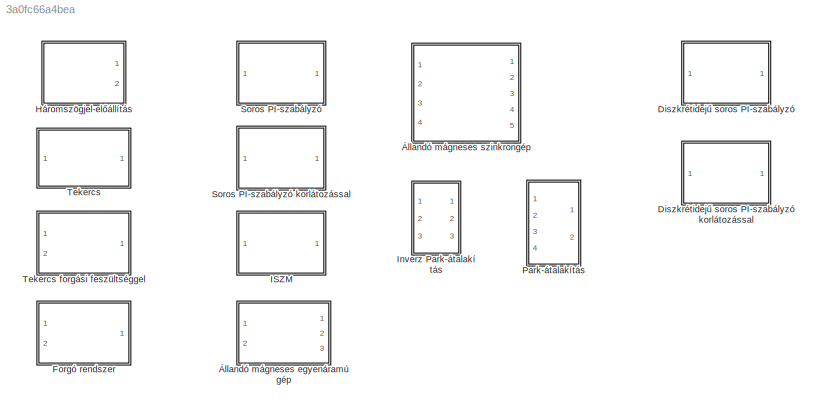
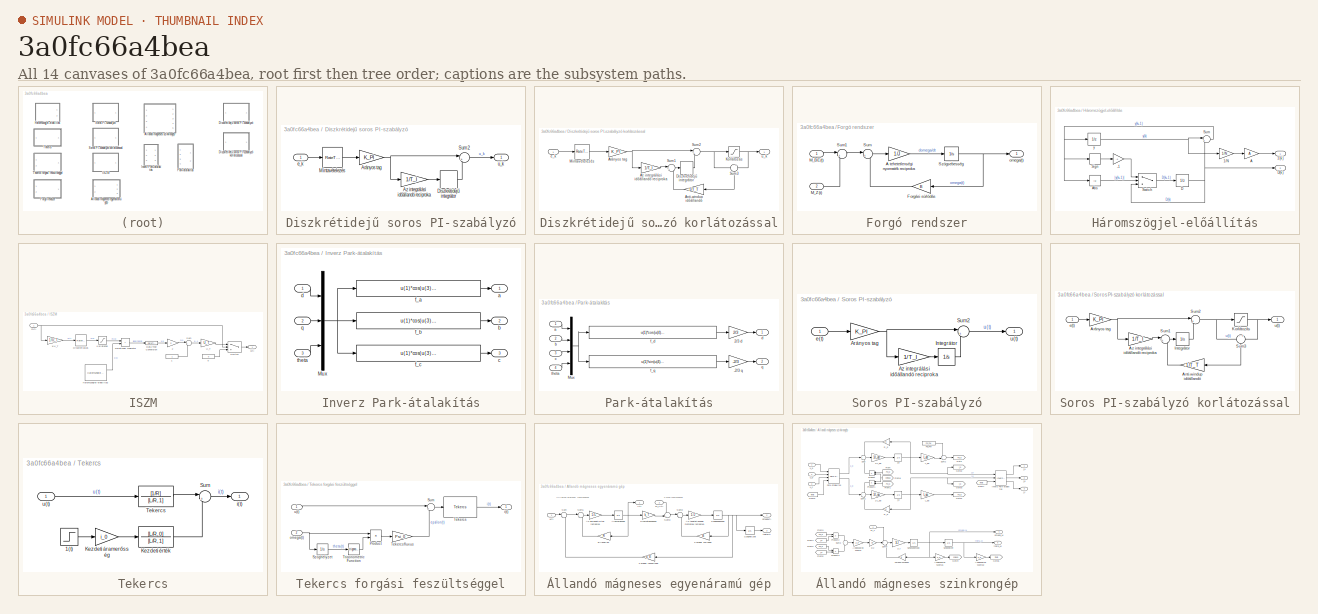
[diagram: thumbnail index - all 14 canvases of the model, root first then tree order]
MODEL slx_3a0fc66a4bea
KIND library
BLOCK [SubSystem] Diszkrétidejű soros PI-szabályzó
  FunctionWithSeparateData = off
  MaskHideContents = off
  MinAlgLoopOccurrences = off
  Opaque = off
  Ports = [1, 1]
  PropExecContextOutsideSubsystem = off
  RTWSystemCode = Auto
  RequestExecContextInheritance = off
BLOCK [SubSystem] Diszkrétidejű soros PI-szabályzó korlátozással
  FunctionWithSeparateData = off
  MaskHideContents = off
  MinAlgLoopOccurrences = off
  Opaque = off
  Ports = [1, 1]
  PropExecContextOutsideSubsystem = off
  RTWSystemCode = Auto
  RequestExecContextInheritance = off
BLOCK [Gain] Diszkrétidejű soros PI-szabályzó korlátozással/Anti-windup időállandó
  Gain = 1/T_T
  OutDataTypeStr = Inherit: Inherit via internal rule
  ParamDataTypeStr = Inherit: Inherit via internal rule
  SaturateOnIntegerOverflow = off
BLOCK [Gain] Diszkrétidejű soros PI-szabályzó korlátozással/Arányos tag
  Gain = K_PI
  OutDataTypeStr = Inherit: Inherit via internal rule
  ParamDataTypeStr = Inherit: Inherit via internal rule
  SaturateOnIntegerOverflow = off
BLOCK [Gain] Diszkrétidejű soros PI-szabályzó korlátozással/Az integrálási időállandó reciproka
  Gain = 1/T_I
  OutDataTypeStr = Inherit: Inherit via internal rule
  ParamDataTypeStr = Inherit: Inherit via internal rule
  SaturateOnIntegerOverflow = off
BLOCK [DiscreteIntegrator] Diszkrétidejű soros PI-szabályzó korlátozással/Diszkrétidejű integrátor
  ICPrevOutput = DiscIntNeverNeededParam
  ICPrevScaledInput = DiscIntNeverNeededParam
  Ports = [1, 1]
  SampleTime = T_S
BLOCK [Saturate] Diszkrétidejű soros PI-szabályzó korlátozással/Korlátozás
  InputPortMap = u0
  LowerLimit = L_L
  Ports = [1, 1]
  UpperLimit = L_U
BLOCK [RateTransition] Diszkrétidejű soros PI-szabályzó korlátozással/Mintavételezés
  OutPortSampleTime = T_S
BLOCK [Sum] Diszkrétidejű soros PI-szabályzó korlátozással/Sum1
  IconShape = round
  InputSameDT = off
  Inputs = |++
  OutDataTypeStr = Inherit: Inherit via internal rule
  Ports = [2, 1]
  SaturateOnIntegerOverflow = off
BLOCK [Sum] Diszkrétidejű soros PI-szabályzó korlátozással/Sum2
  IconShape = round
  InputSameDT = off
  Inputs = |++
  OutDataTypeStr = Inherit: Inherit via internal rule
  Ports = [2, 1]
  SaturateOnIntegerOverflow = off
BLOCK [Sum] Diszkrétidejű soros PI-szabályzó korlátozással/Sum3
  IconShape = round
  InputSameDT = off
  Inputs = -|+
  OutDataTypeStr = Inherit: Inherit via internal rule
  Ports = [2, 1]
  SaturateOnIntegerOverflow = off
BLOCK [Inport] Diszkrétidejű soros PI-szabályzó korlátozással/e_k
  IconDisplay = Port number
BLOCK [Outport] Diszkrétidejű soros PI-szabályzó korlátozással/u_k
  IconDisplay = Port number
BLOCK [Gain] Diszkrétidejű soros PI-szabályzó/Arányos tag
  Gain = K_PI
  OutDataTypeStr = Inherit: Inherit via internal rule
  ParamDataTypeStr = Inherit: Inherit via internal rule
  SaturateOnIntegerOverflow = off
BLOCK [Gain] Diszkrétidejű soros PI-szabályzó/Az integrálási időállandó reciproka
  Gain = 1/T_I
  OutDataTypeStr = Inherit: Inherit via internal rule
  ParamDataTypeStr = Inherit: Inherit via internal rule
  SaturateOnIntegerOverflow = off
BLOCK [DiscreteIntegrator] Diszkrétidejű soros PI-szabályzó/Diszkrétidejű integrátor
  ICPrevOutput = DiscIntNeverNeededParam
  ICPrevScaledInput = DiscIntNeverNeededParam
  Ports = [1, 1]
  SampleTime = T_S
BLOCK [RateTransition] Diszkrétidejű soros PI-szabályzó/Mintavételezés
  OutPortSampleTime = T_S
BLOCK [Sum] Diszkrétidejű soros PI-szabályzó/Sum2
  IconShape = round
  InputSameDT = off
  Inputs = |++
  OutDataTypeStr = Inherit: Inherit via internal rule
  Ports = [2, 1]
  SaturateOnIntegerOverflow = off
BLOCK [Inport] Diszkrétidejű soros PI-szabályzó/e_k
  IconDisplay = Port number
BLOCK [Outport] Diszkrétidejű soros PI-szabályzó/u_k
  IconDisplay = Port number
BLOCK [SubSystem] Forgó rendszer
  FunctionWithSeparateData = off
  MaskHideContents = off
  MinAlgLoopOccurrences = off
  Opaque = off
  Ports = [2, 1]
  PropExecContextOutsideSubsystem = off
  RTWSystemCode = Auto
  RequestExecContextInheritance = off
BLOCK [Gain] Forgó rendszer/A tehetetlenségi nyomaték reciproka
  Gain = 1/J
  OutDataTypeStr = Inherit: Inherit via internal rule
  ParamDataTypeStr = Inherit: Inherit via internal rule
  SaturateOnIntegerOverflow = off
BLOCK [Gain] Forgó rendszer/Forgási súrlódás
  Gain = B
  OutDataTypeStr = Inherit: Inherit via internal rule
  ParamDataTypeStr = Inherit: Inherit via internal rule
  SaturateOnIntegerOverflow = off
BLOCK [Inport] Forgó rendszer/M_BE(t)
  IconDisplay = Port number
BLOCK [Inport] Forgó rendszer/M_Z(t)
  IconDisplay = Port number
  Port = 2
BLOCK [Sum] Forgó rendszer/Sum
  IconShape = round
  InputSameDT = off
  Inputs = |+-
  OutDataTypeStr = Inherit: Inherit via internal rule
  Ports = [2, 1]
  SaturateOnIntegerOverflow = off
BLOCK [Sum] Forgó rendszer/Sum1
  IconShape = round
  InputSameDT = off
  Inputs = |++
  OutDataTypeStr = Inherit: Inherit via internal rule
  Ports = [2, 1]
  SaturateOnIntegerOverflow = off
BLOCK [Integrator] Forgó rendszer/Szögsebesség
  InitialCondition = omega_0
  Ports = [1, 1]
BLOCK [Outport] Forgó rendszer/omega(t)
  IconDisplay = Port number
BLOCK [SubSystem] Háromszögjel-előállítás
  FunctionWithSeparateData = off
  MaskHideContents = off
  MinAlgLoopOccurrences = off
  Opaque = off
  Ports = [0, 2]
  PropExecContextOutsideSubsystem = off
  RTWSystemCode = Auto
  RequestExecContextInheritance = off
BLOCK [Gain] Háromszögjel-előállítás/-1
  Gain = -1
  OutDataTypeStr = Inherit: Inherit via internal rule
  ParamDataTypeStr = Inherit: Inherit via internal rule
  SaturateOnIntegerOverflow = off
BLOCK [Gain] Háromszögjel-előállítás/1//N
  Gain = 1/N
  OutDataTypeStr = Inherit: Inherit via internal rule
  ParamDataTypeStr = Inherit: Inherit via internal rule
  SaturateOnIntegerOverflow = off
BLOCK [Gain] Háromszögjel-előállítás/A
  Gain = A
  OutDataTypeStr = Inherit: Inherit via internal rule
  ParamDataTypeStr = Inherit: Inherit via internal rule
  SaturateOnIntegerOverflow = off
BLOCK [Abs] Háromszögjel-előállítás/Abs
  SaturateOnIntegerOverflow = off
BLOCK [UnitDelay] Háromszögjel-előállítás/D
  InitialCondition = -1
  InputProcessing = Elements as channels (sample based)
  SampleTime = T_S
BLOCK [Outport] Háromszögjel-előállítás/D(k)
  IconDisplay = Port number
  Port = 2
BLOCK [Signum] Háromszögjel-előállítás/Sign
BLOCK [Sum] Háromszögjel-előállítás/Sum
  IconShape = round
  InputSameDT = off
  Inputs = |++
  OutDataTypeStr = Inherit: Inherit via internal rule
  Ports = [2, 1]
  SaturateOnIntegerOverflow = off
BLOCK [Switch] Háromszögjel-előállítás/Switch
  InputSameDT = off
  SaturateOnIntegerOverflow = off
  Threshold = N
BLOCK [UnitDelay] Háromszögjel-előállítás/y
  InitialCondition = N
  InputProcessing = Elements as channels (sample based)
  SampleTime = T_S
BLOCK [Outport] Háromszögjel-előállítás/z(k)
  IconDisplay = Port number
BLOCK [SubSystem] ISZM
  FunctionWithSeparateData = off
  MaskHideContents = off
  MinAlgLoopOccurrences = off
  Opaque = off
  Ports = [1, 1]
  PropExecContextOutsideSubsystem = off
  RTWSystemCode = Auto
  RequestExecContextInheritance = off
BLOCK [Constant] ISZM/0
  Value = 0
BLOCK [Constant] ISZM/1
BLOCK [Gain] ISZM/1//U_T
  Gain = 1/U_T
  OutDataTypeStr = Inherit: Inherit via internal rule
  ParamDataTypeStr = Inherit: Inherit via internal rule
  SaturateOnIntegerOverflow = off
BLOCK [Gain] ISZM/2
  Gain = 2
  OutDataTypeStr = Inherit: Inherit via internal rule
  ParamDataTypeStr = Inherit: Inherit via internal rule
  SaturateOnIntegerOverflow = off
BLOCK [DataTypeConversion] ISZM/Data Type Conversion
  OutDataTypeStr = double
  RndMeth = Floor
  SaturateOnIntegerOverflow = off
BLOCK [RateTransition] ISZM/Diszkretizálás
  OutPortSampleTime = 1/f_ISZM/2
BLOCK [Reference] ISZM/Háromszögjel-előállítás  REF=RI_MK/Háromszögjel-előállítás
  A = 1
  Ports = [0, 2]
  SourceBlock = RI_MK/Háromszögjel-előállítás
  SourceType = Háromszögjel-előállítás
  T_S = T_S
  f = f_ISZM
BLOCK [Saturate] ISZM/Korlátozás
  InputPortMap = u0
  LowerLimit = -0.95*U_T
  Ports = [1, 1]
  UpperLimit = 0.95*U_T
BLOCK [RelationalOperator] ISZM/Relational Operator
  InputSameDT = off
  Operator = >
  OutDataTypeStr = boolean
  Ports = [2, 1]
BLOCK [Sum] ISZM/Sum
  IconShape = round
  InputSameDT = off
  Inputs = |+-
  OutDataTypeStr = Inherit: Inherit via internal rule
  Ports = [2, 1]
  SaturateOnIntegerOverflow = off
BLOCK [Switch] ISZM/Switch
  Criteria = u2 ~= 0
  InputSameDT = off
  SaturateOnIntegerOverflow = off
BLOCK [Gain] ISZM/U_T
  Gain = U_T
  OutDataTypeStr = Inherit: Inherit via internal rule
  ParamDataTypeStr = Inherit: Inherit via internal rule
  SaturateOnIntegerOverflow = off
BLOCK [Inport] ISZM/m(t)
  IconDisplay = Port number
BLOCK [Outport] ISZM/u(t)
  IconDisplay = Port number
BLOCK [SubSystem] Inverz Park-átalakítás
  FunctionWithSeparateData = off
  MaskHideContents = off
  MinAlgLoopOccurrences = off
  Opaque = off
  Ports = [3, 3]
  PropExecContextOutsideSubsystem = off
  RTWSystemCode = Auto
  RequestExecContextInheritance = off
BLOCK [Mux] Inverz Park-átalakítás/Mux
  DisplayOption = bar
  Inputs = 3
  Ports = [3, 1]
BLOCK [Outport] Inverz Park-átalakítás/a
  IconDisplay = Port number
BLOCK [Outport] Inverz Park-átalakítás/b
  IconDisplay = Port number
  Port = 2
BLOCK [Outport] Inverz Park-átalakítás/c
  IconDisplay = Port number
  Port = 3
BLOCK [Inport] Inverz Park-átalakítás/d
  IconDisplay = Port number
BLOCK [Fcn] Inverz Park-átalakítás/f_a
  Expr = u(1)*cos(u(3)) - u(2)*sin(u(3))
BLOCK [Fcn] Inverz Park-átalakítás/f_b
  Expr = u(1)*cos(u(3) - 2*pi/3) - u(2)*sin(u(3) - 2*pi/3)
BLOCK [Fcn] Inverz Park-átalakítás/f_c
  Expr = u(1)*cos(u(3) - 4*pi/3) - u(2)*sin(u(3) - 4*pi/3)
BLOCK [Inport] Inverz Park-átalakítás/q
  IconDisplay = Port number
  Port = 2
BLOCK [Inport] Inverz Park-átalakítás/theta
  IconDisplay = Port number
  Port = 3
BLOCK [SubSystem] Park-átalakítás
  FunctionWithSeparateData = off
  MaskHideContents = off
  MinAlgLoopOccurrences = off
  Opaque = off
  Ports = [4, 2]
  PropExecContextOutsideSubsystem = off
  RTWSystemCode = Auto
  RequestExecContextInheritance = off
BLOCK [Gain] Park-átalakítás/-2//3 q
  Gain = -2/3
  OutDataTypeStr = Inherit: Inherit via internal rule
  ParamDataTypeStr = Inherit: Inherit via internal rule
  SaturateOnIntegerOverflow = off
BLOCK [Gain] Park-átalakítás/2//3 d
  Gain = 2/3
  OutDataTypeStr = Inherit: Inherit via internal rule
  ParamDataTypeStr = Inherit: Inherit via internal rule
  SaturateOnIntegerOverflow = off
BLOCK [Mux] Park-átalakítás/Mux
  DisplayOption = bar
  Ports = [4, 1]
BLOCK [Inport] Park-átalakítás/a
  IconDisplay = Port number
BLOCK [Inport] Park-átalakítás/b
  IconDisplay = Port number
  Port = 2
BLOCK [Inport] Park-átalakítás/c
  IconDisplay = Port number
  Port = 3
BLOCK [Outport] Park-átalakítás/d
  IconDisplay = Port number
BLOCK [Fcn] Park-átalakítás/f_d
  Expr = u(1)*cos(u(4)) + u(2)*cos(u(4) - 2*pi/3) + u(3)*cos(u(4) - 4*pi/3)
BLOCK [Fcn] Park-átalakítás/f_q
  Expr = u(1)*sin(u(4)) + u(2)*sin(u(4) - 2*pi/3) + u(3)*sin(u(4) - 4*pi/3)
BLOCK [Outport] Park-átalakítás/q
  IconDisplay = Port number
  Port = 2
BLOCK [Inport] Park-átalakítás/theta
  IconDisplay = Port number
  Port = 4
BLOCK [SubSystem] Soros PI-szabályzó
  FunctionWithSeparateData = off
  MaskHideContents = off
  MinAlgLoopOccurrences = off
  Opaque = off
  Ports = [1, 1]
  PropExecContextOutsideSubsystem = off
  RTWSystemCode = Auto
  RequestExecContextInheritance = off
BLOCK [SubSystem] Soros PI-szabályzó korlátozással
  FunctionWithSeparateData = off
  MaskHideContents = off
  MinAlgLoopOccurrences = off
  Opaque = off
  Ports = [1, 1]
  PropExecContextOutsideSubsystem = off
  RTWSystemCode = Auto
  RequestExecContextInheritance = off
BLOCK [Gain] Soros PI-szabályzó korlátozással/Anti-windup időállandó
  Gain = 1/T_T
  OutDataTypeStr = Inherit: Inherit via internal rule
  ParamDataTypeStr = Inherit: Inherit via internal rule
  SaturateOnIntegerOverflow = off
BLOCK [Gain] Soros PI-szabályzó korlátozással/Arányos tag
  Gain = K_PI
  OutDataTypeStr = Inherit: Inherit via internal rule
  ParamDataTypeStr = Inherit: Inherit via internal rule
  SaturateOnIntegerOverflow = off
BLOCK [Gain] Soros PI-szabályzó korlátozással/Az integrálási időállandó reciproka
  Gain = 1/T_I
  OutDataTypeStr = Inherit: Inherit via internal rule
  ParamDataTypeStr = Inherit: Inherit via internal rule
  SaturateOnIntegerOverflow = off
BLOCK [Integrator] Soros PI-szabályzó korlátozással/Integrátor
  Ports = [1, 1]
BLOCK [Saturate] Soros PI-szabályzó korlátozással/Korlátozás
  InputPortMap = u0
  LowerLimit = L_L
  Ports = [1, 1]
  UpperLimit = L_U
BLOCK [Sum] Soros PI-szabályzó korlátozással/Sum1
  IconShape = round
  InputSameDT = off
  Inputs = |++
  OutDataTypeStr = Inherit: Inherit via internal rule
  Ports = [2, 1]
  SaturateOnIntegerOverflow = off
BLOCK [Sum] Soros PI-szabályzó korlátozással/Sum2
  IconShape = round
  InputSameDT = off
  Inputs = |++
  OutDataTypeStr = Inherit: Inherit via internal rule
  Ports = [2, 1]
  SaturateOnIntegerOverflow = off
BLOCK [Sum] Soros PI-szabályzó korlátozással/Sum3
  IconShape = round
  InputSameDT = off
  Inputs = -|+
  OutDataTypeStr = Inherit: Inherit via internal rule
  Ports = [2, 1]
  SaturateOnIntegerOverflow = off
BLOCK [Inport] Soros PI-szabályzó korlátozással/e(t)
  IconDisplay = Port number
BLOCK [Outport] Soros PI-szabályzó korlátozással/u(t)
  IconDisplay = Port number
BLOCK [Gain] Soros PI-szabályzó/Arányos tag
  Gain = K_PI
  OutDataTypeStr = Inherit: Inherit via internal rule
  ParamDataTypeStr = Inherit: Inherit via internal rule
  SaturateOnIntegerOverflow = off
BLOCK [Gain] Soros PI-szabályzó/Az integrálási időállandó reciproka
  Gain = 1/T_I
  OutDataTypeStr = Inherit: Inherit via internal rule
  ParamDataTypeStr = Inherit: Inherit via internal rule
  SaturateOnIntegerOverflow = off
BLOCK [Integrator] Soros PI-szabályzó/Integrátor
  Ports = [1, 1]
BLOCK [Sum] Soros PI-szabályzó/Sum2
  IconShape = round
  InputSameDT = off
  Inputs = |++
  OutDataTypeStr = Inherit: Inherit via internal rule
  Ports = [2, 1]
  SaturateOnIntegerOverflow = off
BLOCK [Inport] Soros PI-szabályzó/e(t)
  IconDisplay = Port number
BLOCK [Outport] Soros PI-szabályzó/u(t)
  IconDisplay = Port number
BLOCK [SubSystem] Tekercs
  FunctionWithSeparateData = off
  MaskHideContents = off
  MinAlgLoopOccurrences = off
  Opaque = off
  Ports = [1, 1]
  PropExecContextOutsideSubsystem = off
  RTWSystemCode = Auto
  RequestExecContextInheritance = off
BLOCK [SubSystem] Tekercs forgási feszültséggel
  FunctionWithSeparateData = off
  MaskHideContents = off
  MinAlgLoopOccurrences = off
  Opaque = off
  Ports = [2, 1]
  PropExecContextOutsideSubsystem = off
  RTWSystemCode = Auto
  RequestExecContextInheritance = off
BLOCK [Product] Tekercs forgási feszültséggel/Product
  InputSameDT = off
  OutDataTypeStr = Inherit: Inherit via internal rule
  Ports = [2, 1]
  RndMeth = Floor
  SaturateOnIntegerOverflow = off
BLOCK [Sum] Tekercs forgási feszültséggel/Sum
  IconShape = round
  InputSameDT = off
  Inputs = |++
  OutDataTypeStr = Inherit: Inherit via internal rule
  Ports = [2, 1]
  SaturateOnIntegerOverflow = off
BLOCK [Integrator] Tekercs forgási feszültséggel/Szöghelyzet
  InitialCondition = theta_0
  Ports = [1, 1]
BLOCK [Reference] Tekercs forgási feszültséggel/Tekercs  REF=RI_MK/Tekercs
  L = L
  Ports = [1, 1]
  R = R
  SourceBlock = RI_MK/Tekercs
  SourceType = Tekercs
  i_0 = i_0
BLOCK [Gain] Tekercs forgási feszültséggel/Tekercsfluxus
  Gain = Psi_0
  OutDataTypeStr = Inherit: Inherit via internal rule
  ParamDataTypeStr = Inherit: Inherit via internal rule
  SaturateOnIntegerOverflow = off
BLOCK [Trigonometry] Tekercs forgási feszültséggel/Trigonometric Function
  Ports = [1, 1]
BLOCK [Outport] Tekercs forgási feszültséggel/i(t)
  IconDisplay = Port number
BLOCK [Inport] Tekercs forgási feszültséggel/omega(t)
  IconDisplay = Port number
  Port = 2
BLOCK [Inport] Tekercs forgási feszültséggel/u(t)
  IconDisplay = Port number
BLOCK [Step] Tekercs/1(t)
  SampleTime = 0
  Time = 0
BLOCK [Gain] Tekercs/Kezdeti áramerősség
  Gain = i_0
  OutDataTypeStr = Inherit: Inherit via internal rule
  ParamDataTypeStr = Inherit: Inherit via internal rule
  SaturateOnIntegerOverflow = off
BLOCK [TransferFcn] Tekercs/Kezdeti érték
  Denominator = [L/R, 1]
  Numerator = [L/R, 0]
BLOCK [Sum] Tekercs/Sum
  IconShape = round
  InputSameDT = off
  Inputs = |++
  OutDataTypeStr = Inherit: Inherit via internal rule
  Ports = [2, 1]
  SaturateOnIntegerOverflow = off
BLOCK [TransferFcn] Tekercs/Tekercs
  Denominator = [L/R, 1]
  Numerator = [1/R]
BLOCK [Outport] Tekercs/i(t)
  IconDisplay = Port number
BLOCK [Inport] Tekercs/u(t)
  IconDisplay = Port number
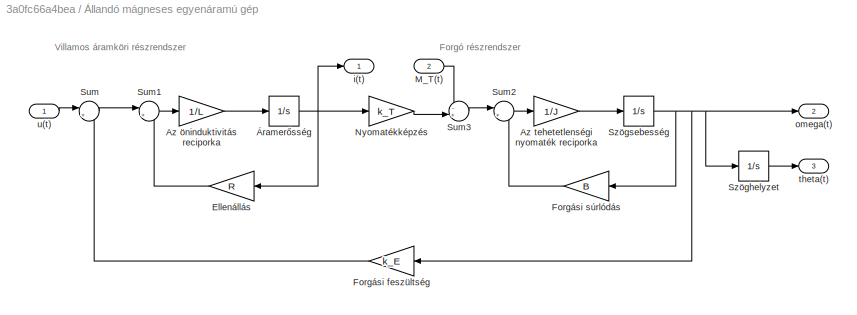
BLOCK [SubSystem] Állandó mágneses egyenáramú gép
  FunctionWithSeparateData = off
  MaskHideContents = off
  MinAlgLoopOccurrences = off
  Opaque = off
  Ports = [2, 3]
  PropExecContextOutsideSubsystem = off
  RTWSystemCode = Auto
  RequestExecContextInheritance = off
BLOCK [Gain] Állandó mágneses egyenáramú gép/Az tehetetlenségi nyomaték reciporka
  Gain = 1/J
  OutDataTypeStr = Inherit: Inherit via internal rule
  ParamDataTypeStr = Inherit: Inherit via internal rule
  SaturateOnIntegerOverflow = off
BLOCK [Gain] Állandó mágneses egyenáramú gép/Az öninduktivitás reciporka
  Gain = 1/L
  OutDataTypeStr = Inherit: Inherit via internal rule
  ParamDataTypeStr = Inherit: Inherit via internal rule
  SaturateOnIntegerOverflow = off
BLOCK [Gain] Állandó mágneses egyenáramú gép/Ellenállás
  Gain = R
  OutDataTypeStr = Inherit: Inherit via internal rule
  ParamDataTypeStr = Inherit: Inherit via internal rule
  SaturateOnIntegerOverflow = off
BLOCK [Gain] Állandó mágneses egyenáramú gép/Forgási feszültség
  Gain = k_E
  OutDataTypeStr = Inherit: Inherit via internal rule
  ParamDataTypeStr = Inherit: Inherit via internal rule
  SaturateOnIntegerOverflow = off
BLOCK [Gain] Állandó mágneses egyenáramú gép/Forgási súrlódás
  Gain = B
  OutDataTypeStr = Inherit: Inherit via internal rule
  ParamDataTypeStr = Inherit: Inherit via internal rule
  SaturateOnIntegerOverflow = off
BLOCK [Inport] Állandó mágneses egyenáramú gép/M_T(t)
  IconDisplay = Port number
  Port = 2
BLOCK [Gain] Állandó mágneses egyenáramú gép/Nyomatékképzés
  Gain = k_T
  OutDataTypeStr = Inherit: Inherit via internal rule
  ParamDataTypeStr = Inherit: Inherit via internal rule
  SaturateOnIntegerOverflow = off
BLOCK [Sum] Állandó mágneses egyenáramú gép/Sum
  IconShape = round
  InputSameDT = off
  Inputs = |+-
  OutDataTypeStr = Inherit: Inherit via internal rule
  Ports = [2, 1]
  SaturateOnIntegerOverflow = off
BLOCK [Sum] Állandó mágneses egyenáramú gép/Sum1
  IconShape = round
  InputSameDT = off
  Inputs = |+-
  OutDataTypeStr = Inherit: Inherit via internal rule
  Ports = [2, 1]
  SaturateOnIntegerOverflow = off
BLOCK [Sum] Állandó mágneses egyenáramú gép/Sum2
  IconShape = round
  InputSameDT = off
  Inputs = |+-
  OutDataTypeStr = Inherit: Inherit via internal rule
  Ports = [2, 1]
  SaturateOnIntegerOverflow = off
BLOCK [Sum] Állandó mágneses egyenáramú gép/Sum3
  IconShape = round
  InputSameDT = off
  Inputs = -+|
  OutDataTypeStr = Inherit: Inherit via internal rule
  Ports = [2, 1]
  SaturateOnIntegerOverflow = off
BLOCK [Integrator] Állandó mágneses egyenáramú gép/Szöghelyzet
  InitialCondition = theta_0
  Ports = [1, 1]
BLOCK [Integrator] Állandó mágneses egyenáramú gép/Szögsebesség
  InitialCondition = omega_0
  Ports = [1, 1]
BLOCK [Outport] Állandó mágneses egyenáramú gép/i(t)
  IconDisplay = Port number
BLOCK [Outport] Állandó mágneses egyenáramú gép/omega(t)
  IconDisplay = Port number
  Port = 2
BLOCK [Outport] Állandó mágneses egyenáramú gép/theta(t)
  IconDisplay = Port number
  Port = 3
BLOCK [Inport] Állandó mágneses egyenáramú gép/u(t)
  IconDisplay = Port number
BLOCK [Integrator] Állandó mágneses egyenáramú gép/Áramerősség
  InitialCondition = i_0
  Ports = [1, 1]
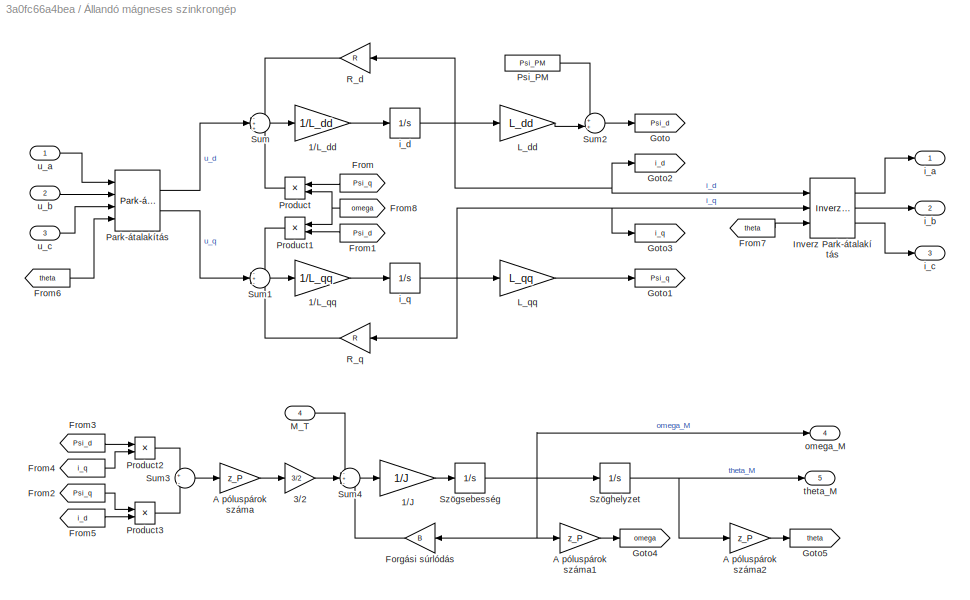
BLOCK [SubSystem] Állandó mágneses szinkrongép
  FunctionWithSeparateData = off
  MaskHideContents = off
  MinAlgLoopOccurrences = off
  Opaque = off
  Ports = [4, 5]
  PropExecContextOutsideSubsystem = off
  RTWSystemCode = Auto
  RequestExecContextInheritance = off
BLOCK [Gain] Állandó mágneses szinkrongép/1//J
  Gain = 1/J
  OutDataTypeStr = Inherit: Inherit via internal rule
  ParamDataTypeStr = Inherit: Inherit via internal rule
  SaturateOnIntegerOverflow = off
BLOCK [Gain] Állandó mágneses szinkrongép/1//L_dd
  Gain = 1/L_dd
  OutDataTypeStr = Inherit: Inherit via internal rule
  ParamDataTypeStr = Inherit: Inherit via internal rule
  SaturateOnIntegerOverflow = off
BLOCK [Gain] Állandó mágneses szinkrongép/1//L_qq
  Gain = 1/L_qq
  OutDataTypeStr = Inherit: Inherit via internal rule
  ParamDataTypeStr = Inherit: Inherit via internal rule
  SaturateOnIntegerOverflow = off
BLOCK [Gain] Állandó mágneses szinkrongép/3//2
  Gain = 3/2
  OutDataTypeStr = Inherit: Inherit via internal rule
  ParamDataTypeStr = Inherit: Inherit via internal rule
  SaturateOnIntegerOverflow = off
BLOCK [Gain] Állandó mágneses szinkrongép/A póluspárok száma
  Gain = z_P
  OutDataTypeStr = Inherit: Inherit via internal rule
  ParamDataTypeStr = Inherit: Inherit via internal rule
  SaturateOnIntegerOverflow = off
BLOCK [Gain] Állandó mágneses szinkrongép/A póluspárok száma1
  Gain = z_P
  OutDataTypeStr = Inherit: Inherit via internal rule
  ParamDataTypeStr = Inherit: Inherit via internal rule
  SaturateOnIntegerOverflow = off
BLOCK [Gain] Állandó mágneses szinkrongép/A póluspárok száma2
  Gain = z_P
  OutDataTypeStr = Inherit: Inherit via internal rule
  ParamDataTypeStr = Inherit: Inherit via internal rule
  SaturateOnIntegerOverflow = off
BLOCK [Gain] Állandó mágneses szinkrongép/Forgási súrlódás
  Gain = B
  OutDataTypeStr = Inherit: Inherit via internal rule
  ParamDataTypeStr = Inherit: Inherit via internal rule
  SaturateOnIntegerOverflow = off
BLOCK [From] Állandó mágneses szinkrongép/From
  GotoTag = Psi_q
BLOCK [From] Állandó mágneses szinkrongép/From1
  GotoTag = Psi_d
BLOCK [From] Állandó mágneses szinkrongép/From2
  GotoTag = Psi_q
BLOCK [From] Állandó mágneses szinkrongép/From3
  GotoTag = Psi_d
BLOCK [From] Állandó mágneses szinkrongép/From4
  GotoTag = i_q
BLOCK [From] Állandó mágneses szinkrongép/From5
  GotoTag = i_d
BLOCK [From] Állandó mágneses szinkrongép/From6
  GotoTag = theta
BLOCK [From] Állandó mágneses szinkrongép/From7
  GotoTag = theta
BLOCK [From] Állandó mágneses szinkrongép/From8
  GotoTag = omega
BLOCK [Goto] Állandó mágneses szinkrongép/Goto
  GotoTag = Psi_d
BLOCK [Goto] Állandó mágneses szinkrongép/Goto1
  GotoTag = Psi_q
BLOCK [Goto] Állandó mágneses szinkrongép/Goto2
  GotoTag = i_d
BLOCK [Goto] Állandó mágneses szinkrongép/Goto3
  GotoTag = i_q
BLOCK [Goto] Állandó mágneses szinkrongép/Goto4
  GotoTag = omega
BLOCK [Goto] Állandó mágneses szinkrongép/Goto5
  GotoTag = theta
BLOCK [Reference] Állandó mágneses szinkrongép/Inverz Park-átalakítás  REF=RI_MK/Inverz Park-átalakítás
  Ports = [3, 3]
  SourceBlock = RI_MK/Inverz Park-átalakítás
  SourceType = SubSystem
BLOCK [Gain] Állandó mágneses szinkrongép/L_dd
  Gain = L_dd
  OutDataTypeStr = Inherit: Inherit via internal rule
  ParamDataTypeStr = Inherit: Inherit via internal rule
  SaturateOnIntegerOverflow = off
BLOCK [Gain] Állandó mágneses szinkrongép/L_qq
  Gain = L_qq
  OutDataTypeStr = Inherit: Inherit via internal rule
  ParamDataTypeStr = Inherit: Inherit via internal rule
  SaturateOnIntegerOverflow = off
BLOCK [Inport] Állandó mágneses szinkrongép/M_T
  IconDisplay = Port number
  Port = 4
BLOCK [Reference] Állandó mágneses szinkrongép/Park-átalakítás  REF=RI_MK/Park-átalakítás
  Ports = [4, 2]
  SourceBlock = RI_MK/Park-átalakítás
  SourceType = SubSystem
BLOCK [Product] Állandó mágneses szinkrongép/Product
  InputSameDT = off
  OutDataTypeStr = Inherit: Inherit via internal rule
  Ports = [2, 1]
  RndMeth = Floor
  SaturateOnIntegerOverflow = off
BLOCK [Product] Állandó mágneses szinkrongép/Product1
  InputSameDT = off
  OutDataTypeStr = Inherit: Inherit via internal rule
  Ports = [2, 1]
  RndMeth = Floor
  SaturateOnIntegerOverflow = off
BLOCK [Product] Állandó mágneses szinkrongép/Product2
  InputSameDT = off
  OutDataTypeStr = Inherit: Inherit via internal rule
  Ports = [2, 1]
  RndMeth = Floor
  SaturateOnIntegerOverflow = off
BLOCK [Product] Állandó mágneses szinkrongép/Product3
  InputSameDT = off
  OutDataTypeStr = Inherit: Inherit via internal rule
  Ports = [2, 1]
  RndMeth = Floor
  SaturateOnIntegerOverflow = off
BLOCK [Constant] Állandó mágneses szinkrongép/Psi_PM
  Value = Psi_PM
BLOCK [Gain] Állandó mágneses szinkrongép/R_d
  Gain = R
  OutDataTypeStr = Inherit: Inherit via internal rule
  ParamDataTypeStr = Inherit: Inherit via internal rule
  SaturateOnIntegerOverflow = off
BLOCK [Gain] Állandó mágneses szinkrongép/R_q
  Gain = R
  OutDataTypeStr = Inherit: Inherit via internal rule
  ParamDataTypeStr = Inherit: Inherit via internal rule
  SaturateOnIntegerOverflow = off
BLOCK [Sum] Állandó mágneses szinkrongép/Sum
  IconShape = round
  InputSameDT = off
  Inputs = -++
  OutDataTypeStr = Inherit: Inherit via internal rule
  Ports = [3, 1]
  SaturateOnIntegerOverflow = off
BLOCK [Sum] Állandó mágneses szinkrongép/Sum1
  IconShape = round
  InputSameDT = off
  Inputs = -+-
  OutDataTypeStr = Inherit: Inherit via internal rule
  Ports = [3, 1]
  SaturateOnIntegerOverflow = off
BLOCK [Sum] Állandó mágneses szinkrongép/Sum2
  IconShape = round
  InputSameDT = off
  Inputs = ++|
  OutDataTypeStr = Inherit: Inherit via internal rule
  Ports = [2, 1]
  SaturateOnIntegerOverflow = off
BLOCK [Sum] Állandó mágneses szinkrongép/Sum3
  IconShape = round
  InputSameDT = off
  Inputs = +|-
  OutDataTypeStr = Inherit: Inherit via internal rule
  Ports = [2, 1]
  SaturateOnIntegerOverflow = off
BLOCK [Sum] Állandó mágneses szinkrongép/Sum4
  IconShape = round
  InputSameDT = off
  Inputs = -+-
  OutDataTypeStr = Inherit: Inherit via internal rule
  Ports = [3, 1]
  SaturateOnIntegerOverflow = off
BLOCK [Integrator] Állandó mágneses szinkrongép/Szöghelyzet
  InitialCondition = theta_M0
  Ports = [1, 1]
BLOCK [Integrator] Állandó mágneses szinkrongép/Szögsebesség
  InitialCondition = omega_M0
  Ports = [1, 1]
BLOCK [Outport] Állandó mágneses szinkrongép/i_a
  IconDisplay = Port number
BLOCK [Outport] Állandó mágneses szinkrongép/i_b
  IconDisplay = Port number
  Port = 2
BLOCK [Outport] Állandó mágneses szinkrongép/i_c
  IconDisplay = Port number
  Port = 3
BLOCK [Integrator] Állandó mágneses szinkrongép/i_d
  InitialCondition = i_d0
  Ports = [1, 1]
BLOCK [Integrator] Állandó mágneses szinkrongép/i_q
  InitialCondition = i_q0
  Ports = [1, 1]
BLOCK [Outport] Állandó mágneses szinkrongép/omega_M
  IconDisplay = Port number
  Port = 4
BLOCK [Outport] Állandó mágneses szinkrongép/theta_M
  IconDisplay = Port number
  Port = 5
BLOCK [Inport] Állandó mágneses szinkrongép/u_a
  IconDisplay = Port number
BLOCK [Inport] Állandó mágneses szinkrongép/u_b
  IconDisplay = Port number
  Port = 2
BLOCK [Inport] Állandó mágneses szinkrongép/u_c
  IconDisplay = Port number
  Port = 3
ANNOTATION Állandó mágneses egyenáramú gép: Forgó részrendszer
ANNOTATION Állandó mágneses egyenáramú gép: Villamos áramköri részrendszer
LINE Diszkrétidejű soros PI-szabályzó korlátozással/Anti-windup időállandó:1 -> Diszkrétidejű soros PI-szabályzó korlátozással/Sum1:2
NET Diszkrétidejű soros PI-szabályzó korlátozással/Arányos tag:1 -> Diszkrétidejű soros PI-szabályzó korlátozással/Az integrálási időállandó reciproka:1, Diszkrétidejű soros PI-szabályzó korlátozással/Sum2:1
LINE Diszkrétidejű soros PI-szabályzó korlátozással/Az integrálási időállandó reciproka:1 -> Diszkrétidejű soros PI-szabályzó korlátozással/Sum1:1
LINE Diszkrétidejű soros PI-szabályzó korlátozással/Diszkrétidejű integrátor:1 -> Diszkrétidejű soros PI-szabályzó korlátozással/Sum2:2
NET Diszkrétidejű soros PI-szabályzó korlátozással/Korlátozás:1 -> Diszkrétidejű soros PI-szabályzó korlátozással/Sum3:2, Diszkrétidejű soros PI-szabályzó korlátozással/u_k:1
LINE Diszkrétidejű soros PI-szabályzó korlátozással/Mintavételezés:1 -> Diszkrétidejű soros PI-szabályzó korlátozással/Arányos tag:1
LINE Diszkrétidejű soros PI-szabályzó korlátozással/Sum1:1 -> Diszkrétidejű soros PI-szabályzó korlátozással/Diszkrétidejű integrátor:1
NET Diszkrétidejű soros PI-szabályzó korlátozással/Sum2:1 -> Diszkrétidejű soros PI-szabályzó korlátozással/Korlátozás:1, Diszkrétidejű soros PI-szabályzó korlátozással/Sum3:1
LINE Diszkrétidejű soros PI-szabályzó korlátozással/Sum3:1 -> Diszkrétidejű soros PI-szabályzó korlátozással/Anti-windup időállandó:1
LINE Diszkrétidejű soros PI-szabályzó korlátozással/e_k:1 -> Diszkrétidejű soros PI-szabályzó korlátozással/Mintavételezés:1
NET Diszkrétidejű soros PI-szabályzó/Arányos tag:1 -> Diszkrétidejű soros PI-szabályzó/Az integrálási időállandó reciproka:1, Diszkrétidejű soros PI-szabályzó/Sum2:1
LINE Diszkrétidejű soros PI-szabályzó/Az integrálási időállandó reciproka:1 -> Diszkrétidejű soros PI-szabályzó/Diszkrétidejű integrátor:1
LINE Diszkrétidejű soros PI-szabályzó/Diszkrétidejű integrátor:1 -> Diszkrétidejű soros PI-szabályzó/Sum2:2
LINE Diszkrétidejű soros PI-szabályzó/Mintavételezés:1 -> Diszkrétidejű soros PI-szabályzó/Arányos tag:1
LINE Diszkrétidejű soros PI-szabályzó/Sum2:1 -> Diszkrétidejű soros PI-szabályzó/u_k:1
LINE Diszkrétidejű soros PI-szabályzó/e_k:1 -> Diszkrétidejű soros PI-szabályzó/Mintavételezés:1
LINE Forgó rendszer/A tehetetlenségi nyomaték reciproka:1 -> Forgó rendszer/Szögsebesség:1
LINE Forgó rendszer/Forgási súrlódás:1 -> Forgó rendszer/Sum:2
LINE Forgó rendszer/M_BE(t):1 -> Forgó rendszer/Sum1:1
LINE Forgó rendszer/M_Z(t):1 -> Forgó rendszer/Sum1:2
LINE Forgó rendszer/Sum1:1 -> Forgó rendszer/Sum:1
LINE Forgó rendszer/Sum:1 -> Forgó rendszer/A tehetetlenségi nyomaték reciproka:1
NET Forgó rendszer/Szögsebesség:1 -> Forgó rendszer/Forgási súrlódás:1, Forgó rendszer/omega(t):1
LINE Háromszögjel-előállítás/-1:1 -> Háromszögjel-előállítás/Switch:1
LINE Háromszögjel-előállítás/1//N:1 -> Háromszögjel-előállítás/A:1
LINE Háromszögjel-előállítás/A:1 -> Háromszögjel-előállítás/z(k):1
LINE Háromszögjel-előállítás/Abs:1 -> Háromszögjel-előállítás/Switch:2
NET Háromszögjel-előállítás/D:1 -> Háromszögjel-előállítás/D(k):1, Háromszögjel-előállítás/Sum:2, Háromszögjel-előállítás/Switch:3
LINE Háromszögjel-előállítás/Sign:1 -> Háromszögjel-előállítás/-1:1
NET Háromszögjel-előállítás/Sum:1 -> Háromszögjel-előállítás/Abs:1, Háromszögjel-előállítás/Sign:1, Háromszögjel-előállítás/y:1
LINE Háromszögjel-előállítás/Switch:1 -> Háromszögjel-előállítás/D:1
NET Háromszögjel-előállítás/y:1 -> Háromszögjel-előállítás/1//N:1, Háromszögjel-előállítás/Sum:1
LINE ISZM/0:1 -> ISZM/Switch:3
LINE ISZM/1//U_T:1 -> ISZM/Diszkretizálás:1
LINE ISZM/1:1 -> ISZM/Sum:2
LINE ISZM/2:1 -> ISZM/Sum:1
LINE ISZM/Data Type Conversion:1 -> ISZM/2:1
LINE ISZM/Diszkretizálás:1 -> ISZM/Korlátozás:1
LINE ISZM/Háromszögjel-előállítás:1 -> ISZM/Relational Operator:2
LINE ISZM/Korlátozás:1 -> ISZM/Relational Operator:1
LINE ISZM/Relational Operator:1 -> ISZM/Data Type Conversion:1
LINE ISZM/Sum:1 -> ISZM/U_T:1
LINE ISZM/Switch:1 -> ISZM/u(t):1
LINE ISZM/U_T:1 -> ISZM/Switch:1
NET ISZM/m(t):1 -> ISZM/1//U_T:1, ISZM/Switch:2
NET Inverz Park-átalakítás/Mux:1 -> Inverz Park-átalakítás/f_a:1, Inverz Park-átalakítás/f_b:1, Inverz Park-átalakítás/f_c:1
LINE Inverz Park-átalakítás/d:1 -> Inverz Park-átalakítás/Mux:1
LINE Inverz Park-átalakítás/f_a:1 -> Inverz Park-átalakítás/a:1
LINE Inverz Park-átalakítás/f_b:1 -> Inverz Park-átalakítás/b:1
LINE Inverz Park-átalakítás/f_c:1 -> Inverz Park-átalakítás/c:1
LINE Inverz Park-átalakítás/q:1 -> Inverz Park-átalakítás/Mux:2
LINE Inverz Park-átalakítás/theta:1 -> Inverz Park-átalakítás/Mux:3
LINE Park-átalakítás/-2//3 q:1 -> Park-átalakítás/q:1
LINE Park-átalakítás/2//3 d:1 -> Park-átalakítás/d:1
NET Park-átalakítás/Mux:1 -> Park-átalakítás/f_d:1, Park-átalakítás/f_q:1
LINE Park-átalakítás/a:1 -> Park-átalakítás/Mux:1
LINE Park-átalakítás/b:1 -> Park-átalakítás/Mux:2
LINE Park-átalakítás/c:1 -> Park-átalakítás/Mux:3
LINE Park-átalakítás/f_d:1 -> Park-átalakítás/2//3 d:1
LINE Park-átalakítás/f_q:1 -> Park-átalakítás/-2//3 q:1
LINE Park-átalakítás/theta:1 -> Park-átalakítás/Mux:4
LINE Soros PI-szabályzó korlátozással/Anti-windup időállandó:1 -> Soros PI-szabályzó korlátozással/Sum1:2
NET Soros PI-szabályzó korlátozással/Arányos tag:1 -> Soros PI-szabályzó korlátozással/Az integrálási időállandó reciproka:1, Soros PI-szabályzó korlátozással/Sum2:1
LINE Soros PI-szabályzó korlátozással/Az integrálási időállandó reciproka:1 -> Soros PI-szabályzó korlátozással/Sum1:1
LINE Soros PI-szabályzó korlátozással/Integrátor:1 -> Soros PI-szabályzó korlátozással/Sum2:2
NET Soros PI-szabályzó korlátozással/Korlátozás:1 -> Soros PI-szabályzó korlátozással/Sum3:2, Soros PI-szabályzó korlátozással/u(t):1
LINE Soros PI-szabályzó korlátozással/Sum1:1 -> Soros PI-szabályzó korlátozással/Integrátor:1
NET Soros PI-szabályzó korlátozással/Sum2:1 -> Soros PI-szabályzó korlátozással/Korlátozás:1, Soros PI-szabályzó korlátozással/Sum3:1
LINE Soros PI-szabályzó korlátozással/Sum3:1 -> Soros PI-szabályzó korlátozással/Anti-windup időállandó:1
LINE Soros PI-szabályzó korlátozással/e(t):1 -> Soros PI-szabályzó korlátozással/Arányos tag:1
NET Soros PI-szabályzó/Arányos tag:1 -> Soros PI-szabályzó/Az integrálási időállandó reciproka:1, Soros PI-szabályzó/Sum2:1
LINE Soros PI-szabályzó/Az integrálási időállandó reciproka:1 -> Soros PI-szabályzó/Integrátor:1
LINE Soros PI-szabályzó/Integrátor:1 -> Soros PI-szabályzó/Sum2:2
LINE Soros PI-szabályzó/Sum2:1 -> Soros PI-szabályzó/u(t):1
LINE Soros PI-szabályzó/e(t):1 -> Soros PI-szabályzó/Arányos tag:1
LINE Tekercs forgási feszültséggel/Product:1 -> Tekercs forgási feszültséggel/Tekercsfluxus:1
LINE Tekercs forgási feszültséggel/Sum:1 -> Tekercs forgási feszültséggel/Tekercs:1
LINE Tekercs forgási feszültséggel/Szöghelyzet:1 -> Tekercs forgási feszültséggel/Trigonometric Function:1
LINE Tekercs forgási feszültséggel/Tekercs:1 -> Tekercs forgási feszültséggel/i(t):1
LINE Tekercs forgási feszültséggel/Tekercsfluxus:1 -> Tekercs forgási feszültséggel/Sum:2
LINE Tekercs forgási feszültséggel/Trigonometric Function:1 -> Tekercs forgási feszültséggel/Product:2
NET Tekercs forgási feszültséggel/omega(t):1 -> Tekercs forgási feszültséggel/Product:1, Tekercs forgási feszültséggel/Szöghelyzet:1
LINE Tekercs forgási feszültséggel/u(t):1 -> Tekercs forgási feszültséggel/Sum:1
LINE Tekercs/1(t):1 -> Tekercs/Kezdeti áramerősség:1
LINE Tekercs/Kezdeti áramerősség:1 -> Tekercs/Kezdeti érték:1
LINE Tekercs/Kezdeti érték:1 -> Tekercs/Sum:2
LINE Tekercs/Sum:1 -> Tekercs/i(t):1
LINE Tekercs/Tekercs:1 -> Tekercs/Sum:1
LINE Tekercs/u(t):1 -> Tekercs/Tekercs:1
LINE Állandó mágneses egyenáramú gép/Az tehetetlenségi nyomaték reciporka:1 -> Állandó mágneses egyenáramú gép/Szögsebesség:1
LINE Állandó mágneses egyenáramú gép/Az öninduktivitás reciporka:1 -> Állandó mágneses egyenáramú gép/Áramerősség:1
LINE Állandó mágneses egyenáramú gép/Ellenállás:1 -> Állandó mágneses egyenáramú gép/Sum1:2
LINE Állandó mágneses egyenáramú gép/Forgási feszültség:1 -> Állandó mágneses egyenáramú gép/Sum:2
LINE Állandó mágneses egyenáramú gép/Forgási súrlódás:1 -> Állandó mágneses egyenáramú gép/Sum2:2
LINE Állandó mágneses egyenáramú gép/M_T(t):1 -> Állandó mágneses egyenáramú gép/Sum3:1
LINE Állandó mágneses egyenáramú gép/Nyomatékképzés:1 -> Állandó mágneses egyenáramú gép/Sum3:2
LINE Állandó mágneses egyenáramú gép/Sum1:1 -> Állandó mágneses egyenáramú gép/Az öninduktivitás reciporka:1
LINE Állandó mágneses egyenáramú gép/Sum2:1 -> Állandó mágneses egyenáramú gép/Az tehetetlenségi nyomaték reciporka:1
LINE Állandó mágneses egyenáramú gép/Sum3:1 -> Állandó mágneses egyenáramú gép/Sum2:1
LINE Állandó mágneses egyenáramú gép/Sum:1 -> Állandó mágneses egyenáramú gép/Sum1:1
LINE Állandó mágneses egyenáramú gép/Szöghelyzet:1 -> Állandó mágneses egyenáramú gép/theta(t):1
NET Állandó mágneses egyenáramú gép/Szögsebesség:1 -> Állandó mágneses egyenáramú gép/Forgási feszültség:1, Állandó mágneses egyenáramú gép/Forgási súrlódás:1, Állandó mágneses egyenáramú gép/Szöghelyzet:1, Állandó mágneses egyenáramú gép/omega(t):1
LINE Állandó mágneses egyenáramú gép/u(t):1 -> Állandó mágneses egyenáramú gép/Sum:1
NET Állandó mágneses egyenáramú gép/Áramerősség:1 -> Állandó mágneses egyenáramú gép/Ellenállás:1, Állandó mágneses egyenáramú gép/Nyomatékképzés:1, Állandó mágneses egyenáramú gép/i(t):1
LINE Állandó mágneses szinkrongép/1//J:1 -> Állandó mágneses szinkrongép/Szögsebesség:1
LINE Állandó mágneses szinkrongép/1//L_dd:1 -> Állandó mágneses szinkrongép/i_d:1
LINE Állandó mágneses szinkrongép/1//L_qq:1 -> Állandó mágneses szinkrongép/i_q:1
LINE Állandó mágneses szinkrongép/3//2:1 -> Állandó mágneses szinkrongép/Sum4:2
LINE Állandó mágneses szinkrongép/A póluspárok száma1:1 -> Állandó mágneses szinkrongép/Goto4:1
LINE Állandó mágneses szinkrongép/A póluspárok száma2:1 -> Állandó mágneses szinkrongép/Goto5:1
LINE Állandó mágneses szinkrongép/A póluspárok száma:1 -> Állandó mágneses szinkrongép/3//2:1
LINE Állandó mágneses szinkrongép/Forgási súrlódás:1 -> Állandó mágneses szinkrongép/Sum4:3
LINE Állandó mágneses szinkrongép/From1:1 -> Állandó mágneses szinkrongép/Product1:2
LINE Állandó mágneses szinkrongép/From2:1 -> Állandó mágneses szinkrongép/Product3:1
LINE Állandó mágneses szinkrongép/From3:1 -> Állandó mágneses szinkrongép/Product2:1
LINE Állandó mágneses szinkrongép/From4:1 -> Állandó mágneses szinkrongép/Product2:2
LINE Állandó mágneses szinkrongép/From5:1 -> Állandó mágneses szinkrongép/Product3:2
LINE Állandó mágneses szinkrongép/From6:1 -> Állandó mágneses szinkrongép/Park-átalakítás:4
LINE Állandó mágneses szinkrongép/From7:1 -> Állandó mágneses szinkrongép/Inverz Park-átalakítás:3
NET Állandó mágneses szinkrongép/From8:1 -> Állandó mágneses szinkrongép/Product1:1, Állandó mágneses szinkrongép/Product:2
LINE Állandó mágneses szinkrongép/From:1 -> Állandó mágneses szinkrongép/Product:1
LINE Állandó mágneses szinkrongép/Inverz Park-átalakítás:1 -> Állandó mágneses szinkrongép/i_a:1
LINE Állandó mágneses szinkrongép/Inverz Park-átalakítás:2 -> Állandó mágneses szinkrongép/i_b:1
LINE Állandó mágneses szinkrongép/Inverz Park-átalakítás:3 -> Állandó mágneses szinkrongép/i_c:1
LINE Állandó mágneses szinkrongép/L_dd:1 -> Állandó mágneses szinkrongép/Sum2:2
LINE Állandó mágneses szinkrongép/L_qq:1 -> Állandó mágneses szinkrongép/Goto1:1
LINE Állandó mágneses szinkrongép/M_T:1 -> Állandó mágneses szinkrongép/Sum4:1
LINE Állandó mágneses szinkrongép/Park-átalakítás:1 -> Állandó mágneses szinkrongép/Sum:2
LINE Állandó mágneses szinkrongép/Park-átalakítás:2 -> Állandó mágneses szinkrongép/Sum1:2
LINE Állandó mágneses szinkrongép/Product1:1 -> Állandó mágneses szinkrongép/Sum1:1
LINE Állandó mágneses szinkrongép/Product2:1 -> Állandó mágneses szinkrongép/Sum3:1
LINE Állandó mágneses szinkrongép/Product3:1 -> Állandó mágneses szinkrongép/Sum3:2
LINE Állandó mágneses szinkrongép/Product:1 -> Állandó mágneses szinkrongép/Sum:3
LINE Állandó mágneses szinkrongép/Psi_PM:1 -> Állandó mágneses szinkrongép/Sum2:1
LINE Állandó mágneses szinkrongép/R_d:1 -> Állandó mágneses szinkrongép/Sum:1
LINE Állandó mágneses szinkrongép/R_q:1 -> Állandó mágneses szinkrongép/Sum1:3
LINE Állandó mágneses szinkrongép/Sum1:1 -> Állandó mágneses szinkrongép/1//L_qq:1
LINE Állandó mágneses szinkrongép/Sum2:1 -> Állandó mágneses szinkrongép/Goto:1
LINE Állandó mágneses szinkrongép/Sum3:1 -> Állandó mágneses szinkrongép/A póluspárok száma:1
LINE Állandó mágneses szinkrongép/Sum4:1 -> Állandó mágneses szinkrongép/1//J:1
LINE Állandó mágneses szinkrongép/Sum:1 -> Állandó mágneses szinkrongép/1//L_dd:1
NET Állandó mágneses szinkrongép/Szöghelyzet:1 -> Állandó mágneses szinkrongép/A póluspárok száma2:1, Állandó mágneses szinkrongép/theta_M:1
NET Állandó mágneses szinkrongép/Szögsebesség:1 -> Állandó mágneses szinkrongép/A póluspárok száma1:1, Állandó mágneses szinkrongép/Forgási súrlódás:1, Állandó mágneses szinkrongép/Szöghelyzet:1, Állandó mágneses szinkrongép/omega_M:1
NET Állandó mágneses szinkrongép/i_d:1 -> Állandó mágneses szinkrongép/Goto2:1, Állandó mágneses szinkrongép/Inverz Park-átalakítás:1, Állandó mágneses szinkrongép/L_dd:1, Állandó mágneses szinkrongép/R_d:1
NET Állandó mágneses szinkrongép/i_q:1 -> Állandó mágneses szinkrongép/Goto3:1, Állandó mágneses szinkrongép/Inverz Park-átalakítás:2, Állandó mágneses szinkrongép/L_qq:1, Állandó mágneses szinkrongép/R_q:1
LINE Állandó mágneses szinkrongép/u_a:1 -> Állandó mágneses szinkrongép/Park-átalakítás:1
LINE Állandó mágneses szinkrongép/u_b:1 -> Állandó mágneses szinkrongép/Park-átalakítás:2
LINE Állandó mágneses szinkrongép/u_c:1 -> Állandó mágneses szinkrongép/Park-átalakítás:3
note: NET lines group one-source signal fan-out (src -> all destinations, sorted); 1:1 wires keep LINE
